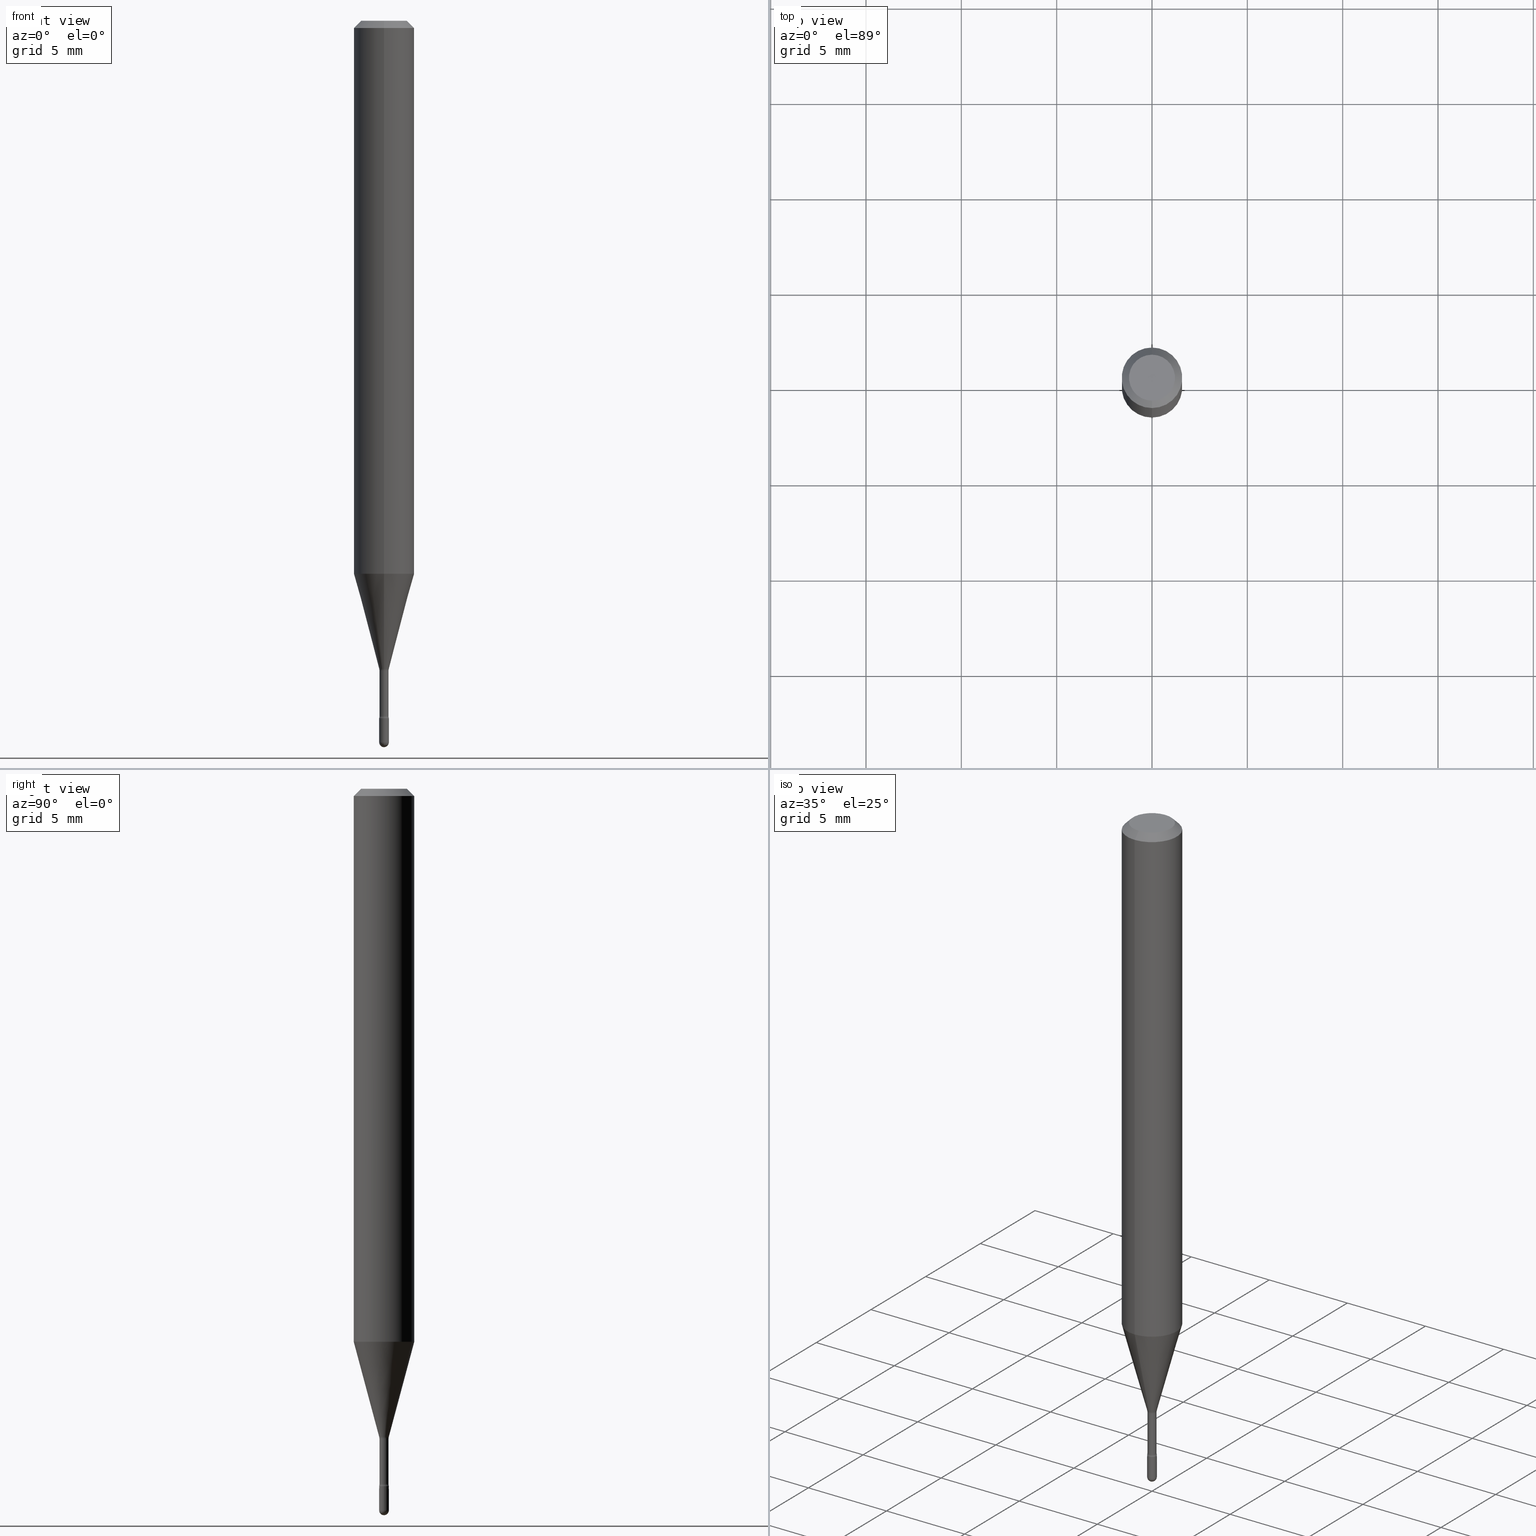
[diagram: canonical four-view strip — front | top / right | iso, engineering-drawing reading convention]
A machine part, canonical four-view strip (front | top / right | iso — engineering-drawing reading convention). The complete STEP part file that produces these views, byte-faithful:
ISO-10303-21;
HEADER;
FILE_DESCRIPTION (( 'STEP AP203' ),
    '1' );
FILE_NAME ('03699.STEP',
    '2024-04-09T20:12:26',
    ( '' ),
    ( '' ),
    'SwSTEP 2.0',
    'SolidWorks 2023',
    '' );
FILE_SCHEMA (( 'CONFIG_CONTROL_DESIGN' ));
ENDSEC;

DATA;
#1 = PERSON_AND_ORGANIZATION_ROLE ( 'design_owner' ) ;
#2 = CARTESIAN_POINT ( 'NONE',  ( 6.892264536876491067E-17, 0.009399999999995004366, -1.435800000000000187 ) ) ;
#3 = ADVANCED_FACE ( 'NONE', ( #163 ), #90, .T. ) ;
#4 = DIRECTION ( 'NONE',  ( -6.982962677686265133E-15, -1.000000000000000000, 0.000000000000000000 ) ) ;
#5 = ADVANCED_FACE ( 'NONE', ( #80 ), #40, .T. ) ;
#6 = ADVANCED_FACE ( 'NONE', ( #558 ), #508, .T. ) ;
#7 = LINE ( 'NONE', #394, #81 ) ;
#8 = CALENDAR_DATE ( 2024, 9, 4 ) ;
#9 = CARTESIAN_POINT ( 'NONE',  ( 3.511234028007964327E-29, -5.013026064771194887E-15, -1.435800000000000187 ) ) ;
#10 = DIRECTION ( 'NONE',  ( 1.000000000000000000, -6.982962677686265922E-15, 4.876176775795935793E-29 ) ) ;
#11 = DIRECTION ( 'NONE',  ( 2.445489642016968715E-29, -3.491451500746059769E-15, -1.000000000000000000 ) ) ;
#12 = DIRECTION ( 'NONE',  ( -2.445489642016968435E-29, 3.491451500746060163E-15, 1.000000000000000000 ) ) ;
#13 = EDGE_CURVE ( 'NONE', #248, #423, #432, .T. ) ;
#14 = CARTESIAN_POINT ( 'NONE',  ( 3.521475080906597305E-29, -5.027733127934130649E-15, -1.440000000000000169 ) ) ;
#15 = CARTESIAN_POINT ( 'NONE',  ( 2.572559502513361655E-16, 0.009911112605659305394, -1.338092501787273347 ) ) ;
#16 = DIRECTION ( 'NONE',  ( -6.982962677686265922E-15, -1.000000000000000000, 3.491451500746059769E-15 ) ) ;
#17 = VERTEX_POINT ( 'NONE', #156 ) ;
#18 = CYLINDRICAL_SURFACE ( 'NONE', #149, 0.01000000000000000021 ) ;
#19 = ORIENTED_EDGE ( 'NONE', *, *, #283, .F. ) ;
#20 = FACE_OUTER_BOUND ( 'NONE', #332, .T. ) ;
#21 = EDGE_LOOP ( 'NONE', ( #150, #552, #381, #112 ) ) ;
#22 = DIRECTION ( 'NONE',  ( -6.982962677686265922E-15, -1.000000000000000000, 0.000000000000000000 ) ) ;
#23 = CARTESIAN_POINT ( 'NONE',  ( 3.521505084504435331E-29, -5.027690161074327803E-15, -1.440000000000000169 ) ) ;
#24 = CIRCLE ( 'NONE', #525, 0.01000000000000000021 ) ;
#25 = APPROVAL ( #37, 'UNSPECIFIED' ) ;
#26 = EDGE_CURVE ( 'NONE', #427, #414, #555, .T. ) ;
#27 = ORIENTED_EDGE ( 'NONE', *, *, #117, .F. ) ;
#28 = VERTEX_POINT ( 'NONE', #290 ) ;
#29 = CARTESIAN_POINT ( 'NONE',  ( 3.668234463025472883E-31, -5.237177251119118989E-17, -0.01500000000000008271 ) ) ;
#30 = AXIS2_PLACEMENT_3D ( 'NONE', #14, #400, #10 ) ;
#31 = ORIENTED_EDGE ( 'NONE', *, *, #386, .F. ) ;
#32 = CIRCLE ( 'NONE', #565, 0.009911112605663977004 ) ;
#33 = EDGE_LOOP ( 'NONE', ( #98, #232 ) ) ;
#34 = DIRECTION ( 'NONE',  ( -2.445468806185136597E-29, 3.491481338843145583E-15, 1.000000000000000000 ) ) ;
#35 = EDGE_CURVE ( 'NONE', #141, #371, #480, .T. ) ;
#36 = ORIENTED_EDGE ( 'NONE', *, *, #117, .T. ) ;
#37 = APPROVAL_STATUS ( 'not_yet_approved' ) ;
#38 = PERSON ( 'UNSPECIFIED', 'UNSPECIFIED', 'UNSPECIFIED', ('UNSPECIFIED'), ('UNSPECIFIED'), ('UNSPECIFIED') ) ;
#39 = ORIENTED_EDGE ( 'NONE', *, *, #144, .F. ) ;
#40 = CONICAL_SURFACE ( 'NONE', #184, 0.009911112605663977004, 0.2617993877991500740 ) ;
#41 = APPROVAL ( #553, 'UNSPECIFIED' ) ;
#42 = AXIS2_PLACEMENT_3D ( 'NONE', #9, #441, #396 ) ;
#43 = EDGE_CURVE ( 'NONE', #375, #423, #260, .T. ) ;
#44 = DATE_AND_TIME ( #347, #288 ) ;
#45 = CARTESIAN_POINT ( 'NONE',  ( 1.733724275254996100E-16, 0.02439999999999499861, -1.435800000000000187 ) ) ;
#46 = FACE_OUTER_BOUND ( 'NONE', #294, .T. ) ;
#47 = AXIS2_PLACEMENT_3D ( 'NONE', #523, #540, #187 ) ;
#48 = DATE_AND_TIME ( #434, #387 ) ;
#49 = FACE_OUTER_BOUND ( 'NONE', #500, .T. ) ;
#50 = CC_DESIGN_DATE_AND_TIME_ASSIGNMENT ( #159, #337, ( #542 ) ) ;
#51 = AXIS2_PLACEMENT_3D ( 'NONE', #29, #468, #334 ) ;
#52 = VECTOR ( 'NONE', #349, 39.37007874015748854 ) ;
#53 = DIRECTION ( 'NONE',  ( -1.000000000000000000, 6.982962677686265922E-15, -4.883557194083112340E-29 ) ) ;
#54 = CARTESIAN_POINT ( 'NONE',  ( -6.563984917021807676E-17, -0.009400000000004684123, -1.341974787463811269 ) ) ;
#55 = AXIS2_PLACEMENT_3D ( 'NONE', #319, #146, #447 ) ;
#56 = DIRECTION ( 'NONE',  ( -2.445468806185136597E-29, 3.491481338843145583E-15, 1.000000000000000000 ) ) ;
#57 = DIRECTION ( 'NONE',  ( -2.445489642016968435E-29, 3.491451500746060163E-15, 1.000000000000000000 ) ) ;
#58 = CARTESIAN_POINT ( 'NONE',  ( 6.982962677689890787E-17, 0.009999999999994771752, -1.490000000000000213 ) ) ;
#59 = CIRCLE ( 'NONE', #200, 0.009999999999999946432 ) ;
#60 = FACE_OUTER_BOUND ( 'NONE', #374, .T. ) ;
#61 = DIRECTION ( 'NONE',  ( -2.445468806185136597E-29, 3.491481338843145583E-15, 1.000000000000000000 ) ) ;
#62 = ADVANCED_FACE ( 'NONE', ( #554 ), #123, .T. ) ;
#63 = CARTESIAN_POINT ( 'NONE',  ( -4.364351673553916201E-16, -0.06250000000000000000, 6.962891176878747988E-16 ) ) ;
#64 = EDGE_CURVE ( 'NONE', #414, #287, #314, .T. ) ;
#65 = DIRECTION ( 'NONE',  ( 6.982962677686265922E-15, 1.000000000000000000, -3.483106191921935554E-15 ) ) ;
#66 = CARTESIAN_POINT ( 'NONE',  ( 3.272291353181348697E-29, -4.671885073502225665E-15, -1.338092501787273347 ) ) ;
#67 = CARTESIAN_POINT ( 'NONE',  ( 2.023704369115274209E-45, -2.888979329757598670E-31, -8.274844938115695754E-17 ) ) ;
#68 = ORIENTED_EDGE ( 'NONE', *, *, #490, .F. ) ;
#69 = APPROVAL_PERSON_ORGANIZATION ( #521, #206, #129 ) ;
#70 = CC_DESIGN_PERSON_AND_ORGANIZATION_ASSIGNMENT ( #444, #399, ( #94 ) ) ;
#71 = FACE_OUTER_BOUND ( 'NONE', #33, .T. ) ;
#72 = ORIENTED_EDGE ( 'NONE', *, *, #43, .T. ) ;
#73 = DIMENSIONAL_EXPONENTS ( 1.000000000000000000, 0.000000000000000000, 0.000000000000000000, 0.000000000000000000, 0.000000000000000000, 0.000000000000000000, 0.000000000000000000 ) ;
#74 = EDGE_LOOP ( 'NONE', ( #456, #148 ) ) ;
#75 = CARTESIAN_POINT ( 'NONE',  ( 3.272291353181348697E-29, -4.671885073502225665E-15, -1.338092501787273347 ) ) ;
#76 = VERTEX_POINT ( 'NONE', #2 ) ;
#77 = CARTESIAN_POINT ( 'NONE',  ( -1.169113584055446105E-44, 1.669184350826100908E-30, 4.780733988912460139E-16 ) ) ;
#78 = TOROIDAL_SURFACE ( 'NONE', #359, 0.02440000000000000849, 0.01499999999999999077 ) ;
#79 = ORIENTED_EDGE ( 'NONE', *, *, #548, .T. ) ;
#80 = FACE_OUTER_BOUND ( 'NONE', #471, .T. ) ;
#81 = VECTOR ( 'NONE', #269, 39.37007874015748143 ) ;
#82 = AXIS2_PLACEMENT_3D ( 'NONE', #280, #275, #455 ) ;
#83 = ORIENTED_EDGE ( 'NONE', *, *, #35, .T. ) ;
#84 = DIRECTION ( 'NONE',  ( -6.982962677686265922E-15, -1.000000000000000000, 0.000000000000000000 ) ) ;
#85 = ORIENTED_EDGE ( 'NONE', *, *, #43, .F. ) ;
#86 = DATE_AND_TIME ( #472, #267 ) ;
#87 = TOROIDAL_SURFACE ( 'NONE', #402, 0.02440000000000000155, 0.01500000000000002720 ) ;
#88 = COORDINATED_UNIVERSAL_TIME_OFFSET ( 5, 0, .BEHIND. ) ;
#89 = CYLINDRICAL_SURFACE ( 'NONE', #95, 0.06250000000000000000 ) ;
#90 = CONICAL_SURFACE ( 'NONE', #128, 0.009911112605663977004, 0.2617993877991500740 ) ;
#91 = DIRECTION ( 'NONE',  ( -1.000000000000000000, 6.982962677686265922E-15, -4.883557194083112340E-29 ) ) ;
#92 = DIRECTION ( 'NONE',  ( -1.000000000000000000, 6.982962677686265133E-15, -4.883557194083112340E-29 ) ) ;
#93 = CARTESIAN_POINT ( 'NONE',  ( 6.679101716144946940E-17, 0.009400000000000009043, 4.452537547842330347E-16 ) ) ;
#94 = PRODUCT_DEFINITION_FORMATION_WITH_SPECIFIED_SOURCE ( 'ANY', '', #469, .NOT_KNOWN. ) ;
#95 = AXIS2_PLACEMENT_3D ( 'NONE', #266, #227, #477 ) ;
#96 = CARTESIAN_POINT ( 'NONE',  ( 2.023704369115274209E-45, -2.888979329757598670E-31, -8.274844938115695754E-17 ) ) ;
#97 = CARTESIAN_POINT ( 'NONE',  ( 3.316907271900976096E-16, 0.04749999999999999362, 3.181852846960672985E-17 ) ) ;
#98 = ORIENTED_EDGE ( 'NONE', *, *, #425, .F. ) ;
#99 = CARTESIAN_POINT ( 'NONE',  ( 3.668234463025472883E-31, -5.237177251119118989E-17, -0.01500000000000008271 ) ) ;
#100 = EDGE_CURVE ( 'NONE', #566, #539, #223, .T. ) ;
#101 = EDGE_LOOP ( 'NONE', ( #246, #198, #189, #68, #205 ) ) ;
#102 = AXIS2_PLACEMENT_3D ( 'NONE', #138, #214, #209 ) ;
#103 = CARTESIAN_POINT ( 'NONE',  ( -4.287811248607203282E-16, -0.06250000000000005551, -0.01499999999999986587 ) ) ;
#104 = CARTESIAN_POINT ( 'NONE',  ( 0.000000000000000000, 0.000000000000000000, 0.000000000000000000 ) ) ;
#105 = ORIENTED_EDGE ( 'NONE', *, *, #13, .T. ) ;
#106 = VECTOR ( 'NONE', #406, 39.37007874015748143 ) ;
#107 = PLANE ( 'NONE',  #82 ) ;
#108 = ORIENTED_EDGE ( 'NONE', *, *, #26, .F. ) ;
#109 = CC_DESIGN_PERSON_AND_ORGANIZATION_ASSIGNMENT ( #528, #1, ( #469 ) ) ;
#110 = FACE_OUTER_BOUND ( 'NONE', #119, .T. ) ;
#111 = APPLICATION_CONTEXT ( 'configuration controlled 3d designs of mechanical parts and assemblies' ) ;
#112 = ORIENTED_EDGE ( 'NONE', *, *, #122, .F. ) ;
#113 = AXIS2_PLACEMENT_3D ( 'NONE', #23, #543, #492 ) ;
#114 = TOROIDAL_SURFACE ( 'NONE', #547, 0.02440000000000000849, 0.01499999999999999077 ) ;
#115 = ORIENTED_EDGE ( 'NONE', *, *, #199, .F. ) ;
#116 = ORIENTED_EDGE ( 'NONE', *, *, #548, .F. ) ;
#117 = EDGE_CURVE ( 'NONE', #17, #506, #292, .T. ) ;
#118 = DIRECTION ( 'NONE',  ( -2.445489642016968435E-29, 3.491451500746060163E-15, 1.000000000000000000 ) ) ;
#119 = EDGE_LOOP ( 'NONE', ( #557, #341, #108, #19 ) ) ;
#120 = AXIS2_PLACEMENT_3D ( 'NONE', #127, #173, #526 ) ;
#121 = ORIENTED_EDGE ( 'NONE', *, *, #367, .F. ) ;
#122 = EDGE_CURVE ( 'NONE', #514, #420, #174, .T. ) ;
#123 = CYLINDRICAL_SURFACE ( 'NONE', #537, 0.06250000000000000000 ) ;
#124 = DIRECTION ( 'NONE',  ( -2.445489642016968435E-29, 3.491451500746060163E-15, 1.000000000000000000 ) ) ;
#125 = ADVANCED_FACE ( 'NONE', ( #357 ), #488, .T. ) ;
#126 = APPROVAL_STATUS ( 'not_yet_approved' ) ;
#127 = CARTESIAN_POINT ( 'NONE',  ( 2.792328796693690568E-29, -3.986637440734242640E-15, -1.141828102118093380 ) ) ;
#128 = AXIS2_PLACEMENT_3D ( 'NONE', #382, #293, #84 ) ;
#129 = APPROVAL_ROLE ( '' ) ;
#130 = CARTESIAN_POINT ( 'NONE',  ( -4.364351673553637142E-16, -0.06250000000000398293, -1.141828102118092936 ) ) ;
#131 = APPROVAL_DATE_TIME ( #48, #25 ) ;
#132 = DIRECTION ( 'NONE',  ( 1.000000000000000000, -7.105427357601001070E-15, 4.926315143130781498E-29 ) ) ;
#133 = CYLINDRICAL_SURFACE ( 'NONE', #451, 0.009400000000000009043 ) ;
#134 = DIRECTION ( 'NONE',  ( 1.000000000000000000, -6.982962677686265922E-15, 4.876176775795935793E-29 ) ) ;
#135 = AXIS2_PLACEMENT_3D ( 'NONE', #96, #436, #529 ) ;
#136 = EDGE_LOOP ( 'NONE', ( #282, #380, #467, #27 ) ) ;
#137 = LINE ( 'NONE', #409, #106 ) ;
#138 = CARTESIAN_POINT ( 'NONE',  ( 3.521475080906597305E-29, -5.027733127934130649E-15, -1.440000000000000169 ) ) ;
#139 = EDGE_CURVE ( 'NONE', #375, #377, #502, .T. ) ;
#140 = CARTESIAN_POINT ( 'NONE',  ( -6.982962677682741735E-17, -0.01000000000000502397, -1.440000000000000169 ) ) ;
#141 = VERTEX_POINT ( 'NONE', #265 ) ;
#142 = DIRECTION ( 'NONE',  ( -2.445489642016968435E-29, 3.491451500746060163E-15, 1.000000000000000000 ) ) ;
#143 = DIRECTION ( 'NONE',  ( -2.445489642016968435E-29, 3.491451500746060163E-15, 1.000000000000000000 ) ) ;
#144 = EDGE_CURVE ( 'NONE', #76, #494, #164, .T. ) ;
#145 = AXIS2_PLACEMENT_3D ( 'NONE', #276, #497, #190 ) ;
#146 = DIRECTION ( 'NONE',  ( -2.445489642016968435E-29, 3.491451500746060163E-15, 1.000000000000000000 ) ) ;
#147 = EDGE_LOOP ( 'NONE', ( #465, #249, #36, #192 ) ) ;
#148 = ORIENTED_EDGE ( 'NONE', *, *, #100, .T. ) ;
#149 = AXIS2_PLACEMENT_3D ( 'NONE', #104, #235, #457 ) ;
#150 = ORIENTED_EDGE ( 'NONE', *, *, #306, .F. ) ;
#151 = AXIS2_PLACEMENT_3D ( 'NONE', #258, #118, #160 ) ;
#152 = DIRECTION ( 'NONE',  ( -2.445489642016968435E-29, 3.491451500746060163E-15, 1.000000000000000000 ) ) ;
#153 = EDGE_CURVE ( 'NONE', #76, #377, #215, .T. ) ;
#154 = EDGE_LOOP ( 'NONE', ( #315, #342, #83, #161 ) ) ;
#155 = COORDINATED_UNIVERSAL_TIME_OFFSET ( 5, 0, .BEHIND. ) ;
#156 = CARTESIAN_POINT ( 'NONE',  ( -6.920892941966470292E-17, -0.009911112605668648615, -1.338092501787273347 ) ) ;
#157 = EDGE_CURVE ( 'NONE', #17, #248, #520, .T. ) ;
#158 = ORIENTED_EDGE ( 'NONE', *, *, #306, .T. ) ;
#159 = DATE_AND_TIME ( #560, #348 ) ;
#160 = DIRECTION ( 'NONE',  ( -6.982962677686265922E-15, -1.000000000000000000, 4.370956789862821150E-15 ) ) ;
#161 = ORIENTED_EDGE ( 'NONE', *, *, #551, .F. ) ;
#162 = APPROVAL_ROLE ( '' ) ;
#163 = FACE_OUTER_BOUND ( 'NONE', #411, .T. ) ;
#164 = CIRCLE ( 'NONE', #461, 0.01499999999999999424 ) ;
#165 = ORIENTED_EDGE ( 'NONE', *, *, #301, .F. ) ;
#166 = CIRCLE ( 'NONE', #295, 0.009399999999999998634 ) ;
#167 = APPLICATION_PROTOCOL_DEFINITION ( 'international standard', 'config_control_design', 1994, #111 ) ;
#168 = CARTESIAN_POINT ( 'NONE',  ( -1.703842893355120750E-16, -0.02440000000000468877, -1.341974787463811269 ) ) ;
#169 = PERSON_AND_ORGANIZATION_ROLE ( 'creator' ) ;
#170 = DIRECTION ( 'NONE',  ( 6.982962677686265133E-15, 1.000000000000000000, 0.000000000000000000 ) ) ;
#171 = CIRCLE ( 'NONE', #102, 0.01000000000000000021 ) ;
#172 = COORDINATED_UNIVERSAL_TIME_OFFSET ( 5, 0, .BEHIND. ) ;
#173 = DIRECTION ( 'NONE',  ( -2.445489642016968435E-29, 3.491451500746060163E-15, 1.000000000000000000 ) ) ;
#174 = CIRCLE ( 'NONE', #373, 0.01499999999999999424 ) ;
#175 = CARTESIAN_POINT ( 'NONE',  ( 4.364351673553919652E-16, 0.06249999999999995143, -0.01500000000000030129 ) ) ;
#176 = DIRECTION ( 'NONE',  ( -2.445489642016968435E-29, 3.491451500746059769E-15, 1.000000000000000000 ) ) ;
#177 = FACE_OUTER_BOUND ( 'NONE', #136, .T. ) ;
#178 = FACE_OUTER_BOUND ( 'NONE', #74, .T. ) ;
#179 = MANIFOLD_SOLID_BREP ( 'Body-Move/Copy2[2]', #460 ) ;
#180 = EDGE_CURVE ( 'NONE', #287, #321, #24, .T. ) ;
#181 = LINE ( 'NONE', #63, #271 ) ;
#182 = CARTESIAN_POINT ( 'NONE',  ( 0.01000000000000000021, -5.097562754710993158E-15, -1.440000000000000169 ) ) ;
#183 = SPHERICAL_SURFACE ( 'NONE', #333, 0.009999999999999946432 ) ;
#184 = AXIS2_PLACEMENT_3D ( 'NONE', #75, #419, #344 ) ;
#185 = MANIFOLD_SOLID_BREP ( 'Body-Move/Copy2[1]', #284 ) ;
#186 = CIRCLE ( 'NONE', #55, 0.009400000000000017716 ) ;
#187 = DIRECTION ( 'NONE',  ( -7.105427357601000281E-15, -1.000000000000000000, 0.000000000000000000 ) ) ;
#188 = CARTESIAN_POINT ( 'NONE',  ( 4.440892098500903249E-16, 0.06249999999999600320, -1.141828102118093602 ) ) ;
#189 = ORIENTED_EDGE ( 'NONE', *, *, #478, .F. ) ;
#190 = DIRECTION ( 'NONE',  ( -6.982962677686265922E-15, -1.000000000000000000, 3.491451500746060163E-15 ) ) ;
#191 = CARTESIAN_POINT ( 'NONE',  ( 3.511204111920620127E-29, -5.013068906310989230E-15, -1.435800000000000187 ) ) ;
#192 = ORIENTED_EDGE ( 'NONE', *, *, #473, .T. ) ;
#193 = EDGE_LOOP ( 'NONE', ( #510, #550, #562, #545 ) ) ;
#194 = DIRECTION ( 'NONE',  ( -6.982962677686265922E-15, -1.000000000000000000, 0.000000000000000000 ) ) ;
#195 = ORIENTED_EDGE ( 'NONE', *, *, #490, .T. ) ;
#196 = AXIS2_PLACEMENT_3D ( 'NONE', #541, #143, #534 ) ;
#197 = ORIENTED_EDGE ( 'NONE', *, *, #386, .T. ) ;
#198 = ORIENTED_EDGE ( 'NONE', *, *, #301, .T. ) ;
#199 = EDGE_CURVE ( 'NONE', #423, #248, #395, .T. ) ;
#200 = AXIS2_PLACEMENT_3D ( 'NONE', #405, #446, #397 ) ;
#201 = DIRECTION ( 'NONE',  ( -2.445468806185136597E-29, 3.491481338843145583E-15, 1.000000000000000000 ) ) ;
#202 = AXIS2_PLACEMENT_3D ( 'NONE', #370, #401, #134 ) ;
#203 = ORIENTED_EDGE ( 'NONE', *, *, #263, .F. ) ;
#204 = AXIS2_PLACEMENT_3D ( 'NONE', #338, #201, #466 ) ;
#205 = ORIENTED_EDGE ( 'NONE', *, *, #26, .T. ) ;
#206 = APPROVAL ( #126, 'UNSPECIFIED' ) ;
#207 = ORIENTED_EDGE ( 'NONE', *, *, #153, .T. ) ;
#208 = SHAPE_DEFINITION_REPRESENTATION ( #216, #222 ) ;
#209 = DIRECTION ( 'NONE',  ( 1.000000000000000000, -6.982962677686235945E-15, 0.000000000000000000 ) ) ;
#210 = AXIS2_PLACEMENT_3D ( 'NONE', #372, #61, #546 ) ;
#211 = ORIENTED_EDGE ( 'NONE', *, *, #464, .F. ) ;
#212 = APPLICATION_PROTOCOL_DEFINITION ( 'international standard', 'config_control_design', 1994, #496 ) ;
#213 = AXIS2_PLACEMENT_3D ( 'NONE', #391, #221, #219 ) ;
#214 = DIRECTION ( 'NONE',  ( -2.445468806185136597E-29, 3.491481338843145583E-15, 1.000000000000000000 ) ) ;
#215 = LINE ( 'NONE', #93, #247 ) ;
#216 = PRODUCT_DEFINITION_SHAPE ( 'NONE', 'NONE',  #507 ) ;
#217 = CC_DESIGN_PERSON_AND_ORGANIZATION_ASSIGNMENT ( #486, #169, ( #507 ) ) ;
#218 = CARTESIAN_POINT ( 'NONE',  ( 0.000000000000000000, 0.000000000000000000, 0.000000000000000000 ) ) ;
#219 = DIRECTION ( 'NONE',  ( 1.000000000000000000, -6.982962677686235945E-15, 0.000000000000000000 ) ) ;
#220 = DIRECTION ( 'NONE',  ( 1.000000000000000000, 0.000000000000000000, 0.000000000000000000 ) ) ;
#221 = DIRECTION ( 'NONE',  ( -2.445468806185136597E-29, 3.491481338843145583E-15, 1.000000000000000000 ) ) ;
#222 = ADVANCED_BREP_SHAPE_REPRESENTATION ( '03699', ( #185, #179, #379 ), #564 ) ;
#223 = CIRCLE ( 'NONE', #135, 0.04749999999999999362 ) ;
#224 = DIRECTION ( 'NONE',  ( 1.000000000000000000, -7.105427357601001070E-15, 4.926315143130781498E-29 ) ) ;
#225 = CARTESIAN_POINT ( 'NONE',  ( -6.563984917021591972E-17, -0.009400000000005031067, -1.435800000000000187 ) ) ;
#226 = ADVANCED_FACE ( 'NONE', ( #49 ), #487, .T. ) ;
#227 = DIRECTION ( 'NONE',  ( -2.445489642016968435E-29, 3.491451500746060163E-15, 1.000000000000000000 ) ) ;
#228 = DIRECTION ( 'NONE',  ( -6.982962677686265922E-15, -1.000000000000000000, 3.491451500746060163E-15 ) ) ;
#229 = DIRECTION ( 'NONE',  ( 2.445489642016968435E-29, -3.491451500746060163E-15, -1.000000000000000000 ) ) ;
#230 = LOCAL_TIME ( 16, 12, 26.00000000000000000, #393 ) ;
#231 = SECURITY_CLASSIFICATION_LEVEL ( 'unclassified' ) ;
#232 = ORIENTED_EDGE ( 'NONE', *, *, #448, .F. ) ;
#233 = PLANE ( 'NONE',  #30 ) ;
#234 = DIRECTION ( 'NONE',  ( -4.851104656540964275E-15, -0.7071067811865500152, -0.7071067811865450192 ) ) ;
#235 = DIRECTION ( 'NONE',  ( -2.445468806185136597E-29, 3.491481338843145583E-15, 1.000000000000000000 ) ) ;
#236 = ORIENTED_EDGE ( 'NONE', *, *, #35, .F. ) ;
#237 = DIRECTION ( 'NONE',  ( -2.445489642016968435E-29, 3.491451500746059769E-15, 1.000000000000000000 ) ) ;
#238 = CARTESIAN_POINT ( 'NONE',  ( 0.01000000000000000021, -5.184849788182071492E-15, -1.490000000000000213 ) ) ;
#239 = DIRECTION ( 'NONE',  ( -2.445489642016968435E-29, 3.491451500746060163E-15, 1.000000000000000000 ) ) ;
#240 = DIRECTION ( 'NONE',  ( -6.982962677686265922E-15, -1.000000000000000000, 0.000000000000000000 ) ) ;
#241 = CC_DESIGN_APPROVAL ( #41, ( #542 ) ) ;
#242 = ORIENTED_EDGE ( 'NONE', *, *, #340, .F. ) ;
#243 = CIRCLE ( 'NONE', #499, 0.009399999999999998634 ) ;
#244 = CARTESIAN_POINT ( 'NONE',  ( 3.281785442590673140E-29, -4.685439885653898526E-15, -1.341974787463811269 ) ) ;
#245 = CIRCLE ( 'NONE', #458, 0.04749999999999999362 ) ;
#246 = ORIENTED_EDGE ( 'NONE', *, *, #64, .T. ) ;
#247 = VECTOR ( 'NONE', #345, 39.37007874015748143 ) ;
#248 = VERTEX_POINT ( 'NONE', #130 ) ;
#249 = ORIENTED_EDGE ( 'NONE', *, *, #376, .F. ) ;
#250 = VECTOR ( 'NONE', #518, 39.37007874015748143 ) ;
#251 = CARTESIAN_POINT ( 'NONE',  ( 3.668234463025472883E-31, -5.237177251119118989E-17, -0.01500000000000008271 ) ) ;
#252 = ORIENTED_EDGE ( 'NONE', *, *, #331, .T. ) ;
#253 = CC_DESIGN_DATE_AND_TIME_ASSIGNMENT ( #44, #268, ( #507 ) ) ;
#254 = AXIS2_PLACEMENT_3D ( 'NONE', #439, #132, #311 ) ;
#255 = DIRECTION ( 'NONE',  ( -6.982962677686265922E-15, -1.000000000000000000, 3.483106191921935554E-15 ) ) ;
#256 = ORIENTED_EDGE ( 'NONE', *, *, #157, .T. ) ;
#257 = PERSON_AND_ORGANIZATION ( #38, #324 ) ;
#258 = CARTESIAN_POINT ( 'NONE',  ( 2.792328796693690568E-29, -3.986637440734242640E-15, -1.141828102118093380 ) ) ;
#259 = ORIENTED_EDGE ( 'NONE', *, *, #13, .F. ) ;
#260 = LINE ( 'NONE', #378, #388 ) ;
#261 = DIRECTION ( 'NONE',  ( -6.982962677686265133E-15, -1.000000000000000000, 0.000000000000000000 ) ) ;
#262 = ADVANCED_FACE ( 'NONE', ( #46 ), #89, .T. ) ;
#263 = EDGE_CURVE ( 'NONE', #514, #506, #303, .T. ) ;
#264 =( NAMED_UNIT ( * ) SI_UNIT ( $, .STERADIAN. ) SOLID_ANGLE_UNIT ( ) );
#265 = CARTESIAN_POINT ( 'NONE',  ( -4.364351673553912750E-16, -0.06250000000000005551, -0.01499999999999986587 ) ) ;
#266 = CARTESIAN_POINT ( 'NONE',  ( -1.169113584055446105E-44, 1.669184350826100908E-30, 4.780733988912460139E-16 ) ) ;
#267 = LOCAL_TIME ( 16, 12, 26.00000000000000000, #298 ) ;
#268 = DATE_TIME_ROLE ( 'creation_date' ) ;
#269 = DIRECTION ( 'NONE',  ( -2.445468806185136877E-29, 3.491481338843145188E-15, 1.000000000000000000 ) ) ;
#270 = CC_DESIGN_PERSON_AND_ORGANIZATION_ASSIGNMENT ( #257, #424, ( #542 ) ) ;
#271 = VECTOR ( 'NONE', #237, 39.37007874015748143 ) ;
#272 = CARTESIAN_POINT ( 'NONE',  ( 7.105427357604519833E-17, 0.009999999999994971245, -1.440000000000000169 ) ) ;
#273 = FACE_OUTER_BOUND ( 'NONE', #101, .T. ) ;
#274 = DIRECTION ( 'NONE',  ( -2.445489642016968435E-29, 3.491451500746060163E-15, 1.000000000000000000 ) ) ;
#275 = DIRECTION ( 'NONE',  ( -2.445489642016968715E-29, 3.491451500746059769E-15, 1.000000000000000000 ) ) ;
#276 = CARTESIAN_POINT ( 'NONE',  ( 3.281757481429678345E-29, -4.685479927627892670E-15, -1.341974787463811269 ) ) ;
#277 = CARTESIAN_POINT ( 'NONE',  ( 3.511204111920620127E-29, -5.013068906310989230E-15, -1.435800000000000187 ) ) ;
#278 = AXIS2_PLACEMENT_3D ( 'NONE', #389, #124, #482 ) ;
#279 = ORIENTED_EDGE ( 'NONE', *, *, #404, .T. ) ;
#280 = CARTESIAN_POINT ( 'NONE',  ( 6.982962677689787249E-17, 0.009999999999994971245, -1.440000000000000169 ) ) ;
#281 = APPROVAL_PERSON_ORGANIZATION ( #343, #41, #162 ) ;
#282 = ORIENTED_EDGE ( 'NONE', *, *, #330, .F. ) ;
#283 = EDGE_CURVE ( 'NONE', #321, #427, #325, .T. ) ;
#284 = CLOSED_SHELL ( 'NONE', ( #429, #125, #530, #485, #440 ) ) ;
#285 = EDGE_LOOP ( 'NONE', ( #326, #79 ) ) ;
#286 = VECTOR ( 'NONE', #176, 39.37007874015748143 ) ;
#287 = VERTEX_POINT ( 'NONE', #300 ) ;
#288 = LOCAL_TIME ( 16, 12, 26.00000000000000000, #172 ) ;
#289 = EDGE_LOOP ( 'NONE', ( #121, #211, #462, #197 ) ) ;
#290 = CARTESIAN_POINT ( 'NONE',  ( -0.01000000000000000021, -5.043965887829198901E-15, -1.440000000000000169 ) ) ;
#291 = ORIENTED_EDGE ( 'NONE', *, *, #153, .F. ) ;
#292 = CIRCLE ( 'NONE', #422, 0.01500000000000002720 ) ;
#293 = DIRECTION ( 'NONE',  ( -2.445489642016968435E-29, 3.491451500746060163E-15, 1.000000000000000000 ) ) ;
#294 = EDGE_LOOP ( 'NONE', ( #242, #559, #252, #31 ) ) ;
#295 = AXIS2_PLACEMENT_3D ( 'NONE', #413, #410, #501 ) ;
#296 = LENGTH_MEASURE_WITH_UNIT ( LENGTH_MEASURE( 0.02539999999999999897 ), #481 );
#297 = CARTESIAN_POINT ( 'NONE',  ( 3.643748521215853910E-29, -5.202307194876288105E-15, -1.490000000000000213 ) ) ;
#298 = COORDINATED_UNIVERSAL_TIME_OFFSET ( 5, 0, .BEHIND. ) ;
#299 = APPROVAL_ROLE ( '' ) ;
#300 = CARTESIAN_POINT ( 'NONE',  ( -0.01000000000000000021, -5.043965887829198901E-15, -1.490000000000000213 ) ) ;
#301 = EDGE_CURVE ( 'NONE', #287, #28, #7, .T. ) ;
#302 = LINE ( 'NONE', #175, #250 ) ;
#303 = LINE ( 'NONE', #307, #286 ) ;
#304 = AXIS2_PLACEMENT_3D ( 'NONE', #251, #515, #255 ) ;
#305 = CC_DESIGN_APPROVAL ( #25, ( #507 ) ) ;
#306 = EDGE_CURVE ( 'NONE', #76, #514, #416, .T. ) ;
#307 = CARTESIAN_POINT ( 'NONE',  ( -6.563984917025096240E-17, -0.009400000000000009043, 5.108930429982590917E-16 ) ) ;
#308 = CARTESIAN_POINT ( 'NONE',  ( -3.773273898774340269E-16, -0.04749999999999999362, 8.309549690428089627E-17 ) ) ;
#309 = DIRECTION ( 'NONE',  ( 7.105427357600999492E-15, 1.000000000000000000, 0.000000000000000000 ) ) ;
#310 = CIRCLE ( 'NONE', #210, 0.01000000000000000021 ) ;
#311 = DIRECTION ( 'NONE',  ( 7.105427357601000281E-15, 1.000000000000000000, 0.000000000000000000 ) ) ;
#312 = DIRECTION ( 'NONE',  ( -6.982962677686265922E-15, -1.000000000000000000, 3.491451500746060163E-15 ) ) ;
#313 = DIRECTION ( 'NONE',  ( -6.982962677686266711E-15, -1.000000000000000000, 3.491451500746060558E-15 ) ) ;
#314 = CIRCLE ( 'NONE', #355, 0.01000000000000000021 ) ;
#315 = ORIENTED_EDGE ( 'NONE', *, *, #100, .F. ) ;
#316 = FACE_OUTER_BOUND ( 'NONE', #147, .T. ) ;
#317 = DIRECTION ( 'NONE',  ( 6.982962677686265133E-15, 1.000000000000000000, 0.000000000000000000 ) ) ;
#318 = EDGE_LOOP ( 'NONE', ( #105, #335, #236, #430 ) ) ;
#319 = CARTESIAN_POINT ( 'NONE',  ( 3.511234028007964327E-29, -5.013026064771194887E-15, -1.435800000000000187 ) ) ;
#320 = ADVANCED_FACE ( 'NONE', ( #177 ), #516, .F. ) ;
#321 = VERTEX_POINT ( 'NONE', #532 ) ;
#322 = LINE ( 'NONE', #103, #443 ) ;
#323 = DIRECTION ( 'NONE',  ( -6.982962677686265922E-15, -1.000000000000000000, 3.491451500746059769E-15 ) ) ;
#324 = ORGANIZATION ( 'UNSPECIFIED', 'UNSPECIFIED', '' ) ;
#325 = CIRCLE ( 'NONE', #213, 0.01000000000000000021 ) ;
#326 = ORIENTED_EDGE ( 'NONE', *, *, #478, .T. ) ;
#327 = CARTESIAN_POINT ( 'NONE',  ( 4.440892098500906207E-16, 0.06249999999999993755, -0.01500000000000030129 ) ) ;
#328 = FACE_OUTER_BOUND ( 'NONE', #418, .T. ) ;
#329 = ORIENTED_EDGE ( 'NONE', *, *, #157, .F. ) ;
#330 = EDGE_CURVE ( 'NONE', #375, #17, #32, .T. ) ;
#331 = EDGE_CURVE ( 'NONE', #248, #141, #181, .T. ) ;
#332 = EDGE_LOOP ( 'NONE', ( #165, #517, #459, #195, #116 ) ) ;
#333 = AXIS2_PLACEMENT_3D ( 'NONE', #363, #538, #317 ) ;
#334 = DIRECTION ( 'NONE',  ( 6.982962677686265922E-15, 1.000000000000000000, -3.483106191921935554E-15 ) ) ;
#335 = ORIENTED_EDGE ( 'NONE', *, *, #340, .T. ) ;
#336 = VERTEX_POINT ( 'NONE', #361 ) ;
#337 = DATE_TIME_ROLE ( 'classification_date' ) ;
#338 = CARTESIAN_POINT ( 'NONE',  ( 3.643748521215853910E-29, -5.202307194876288105E-15, -1.490000000000000213 ) ) ;
#339 = AXIS2_PLACEMENT_3D ( 'NONE', #99, #229, #65 ) ;
#340 = EDGE_CURVE ( 'NONE', #423, #371, #137, .T. ) ;
#341 = ORIENTED_EDGE ( 'NONE', *, *, #527, .T. ) ;
#342 = ORIENTED_EDGE ( 'NONE', *, *, #367, .T. ) ;
#343 = PERSON_AND_ORGANIZATION ( #38, #324 ) ;
#344 = DIRECTION ( 'NONE',  ( -6.982962677686265922E-15, -1.000000000000000000, 0.000000000000000000 ) ) ;
#345 = DIRECTION ( 'NONE',  ( -2.445489642016968435E-29, 3.491451500746059769E-15, 1.000000000000000000 ) ) ;
#346 = CIRCLE ( 'NONE', #561, 0.01000000000000000021 ) ;
#347 = CALENDAR_DATE ( 2024, 9, 4 ) ;
#348 = LOCAL_TIME ( 16, 12, 26.00000000000000000, #155 ) ;
#349 = DIRECTION ( 'NONE',  ( -1.807323732225328562E-15, -0.2588190451025179639, 0.9659258262890690894 ) ) ;
#350 = DIRECTION ( 'NONE',  ( -2.445468806185136877E-29, 3.491481338843145188E-15, 1.000000000000000000 ) ) ;
#351 = AXIS2_PLACEMENT_3D ( 'NONE', #97, #11, #536 ) ;
#352 = ORIENTED_EDGE ( 'NONE', *, *, #412, .F. ) ;
#353 = PERSON_AND_ORGANIZATION ( #38, #324 ) ;
#354 = CARTESIAN_POINT ( 'NONE',  ( -6.920892941966470292E-17, -0.009911112605668648615, -1.338092501787273347 ) ) ;
#355 = AXIS2_PLACEMENT_3D ( 'NONE', #297, #34, #476 ) ;
#356 = MECHANICAL_CONTEXT ( 'NONE', #496, 'mechanical' ) ;
#357 = FACE_OUTER_BOUND ( 'NONE', #193, .T. ) ;
#358 = FACE_OUTER_BOUND ( 'NONE', #154, .T. ) ;
#359 = AXIS2_PLACEMENT_3D ( 'NONE', #277, #407, #16 ) ;
#360 = PERSON_AND_ORGANIZATION ( #38, #324 ) ;
#361 = CARTESIAN_POINT ( 'NONE',  ( 3.668630792422295430E-29, -5.236609684865145574E-15, -1.500000000000000222 ) ) ;
#362 = CARTESIAN_POINT ( 'NONE',  ( 3.840629472727447874E-16, 0.04749999999999999362, -2.485923956665947867E-16 ) ) ;
#363 = CARTESIAN_POINT ( 'NONE',  ( 3.643748521215853910E-29, -5.202307194876288105E-15, -1.490000000000000213 ) ) ;
#364 = AXIS2_PLACEMENT_3D ( 'NONE', #66, #239, #22 ) ;
#365 = ORIENTED_EDGE ( 'NONE', *, *, #330, .T. ) ;
#366 = CARTESIAN_POINT ( 'NONE',  ( 3.272291353181348697E-29, -4.671885073502225665E-15, -1.338092501787273347 ) ) ;
#367 = EDGE_CURVE ( 'NONE', #566, #141, #322, .T. ) ;
#368 = CARTESIAN_POINT ( 'NONE',  ( 6.679101716148457371E-17, 0.009399999999995313146, -1.341974787463811269 ) ) ;
#369 = CYLINDRICAL_SURFACE ( 'NONE', #202, 0.01000000000000000021 ) ;
#370 = CARTESIAN_POINT ( 'NONE',  ( 0.000000000000000000, 0.000000000000000000, 0.000000000000000000 ) ) ;
#371 = VERTEX_POINT ( 'NONE', #327 ) ;
#372 = CARTESIAN_POINT ( 'NONE',  ( 3.521475080906597305E-29, -5.027733127934130649E-15, -1.440000000000000169 ) ) ;
#373 = AXIS2_PLACEMENT_3D ( 'NONE', #484, #91, #261 ) ;
#374 = EDGE_LOOP ( 'NONE', ( #279, #207, #408, #203 ) ) ;
#375 = VERTEX_POINT ( 'NONE', #15 ) ;
#376 = EDGE_CURVE ( 'NONE', #17, #375, #470, .T. ) ;
#377 = VERTEX_POINT ( 'NONE', #368 ) ;
#378 = CARTESIAN_POINT ( 'NONE',  ( 7.042269065258168553E-17, 0.009911112605659305394, -1.338092501787273347 ) ) ;
#379 = AXIS2_PLACEMENT_3D ( 'NONE', #218, #475, #220 ) ;
#380 = ORIENTED_EDGE ( 'NONE', *, *, #139, .T. ) ;
#381 = ORIENTED_EDGE ( 'NONE', *, *, #448, .T. ) ;
#382 = CARTESIAN_POINT ( 'NONE',  ( 3.272291353181348697E-29, -4.671885073502225665E-15, -1.338092501787273347 ) ) ;
#383 = ORIENTED_EDGE ( 'NONE', *, *, #263, .T. ) ;
#384 = ADVANCED_FACE ( 'NONE', ( #453 ), #114, .F. ) ;
#385 = ORIENTED_EDGE ( 'NONE', *, *, #376, .T. ) ;
#386 = EDGE_CURVE ( 'NONE', #371, #141, #433, .T. ) ;
#387 = LOCAL_TIME ( 16, 12, 26.00000000000000000, #88 ) ;
#388 = VECTOR ( 'NONE', #519, 39.37007874015748854 ) ;
#389 = CARTESIAN_POINT ( 'NONE',  ( -1.169113584055446105E-44, 1.669184350826100908E-30, 4.780733988912460139E-16 ) ) ;
#390 = CC_DESIGN_SECURITY_CLASSIFICATION ( #542, ( #94 ) ) ;
#391 = CARTESIAN_POINT ( 'NONE',  ( 3.643748521215853910E-29, -5.202307194876288105E-15, -1.490000000000000213 ) ) ;
#392 = CIRCLE ( 'NONE', #47, 0.009999999999999946432 ) ;
#393 = COORDINATED_UNIVERSAL_TIME_OFFSET ( 5, 0, .BEHIND. ) ;
#394 = CARTESIAN_POINT ( 'NONE',  ( -0.01000000000000000021, 7.105427357601002007E-17, -4.918935090254906272E-31 ) ) ;
#395 = CIRCLE ( 'NONE', #120, 0.06250000000000000000 ) ;
#396 = DIRECTION ( 'NONE',  ( -6.982962677686267499E-15, -1.000000000000000000, 0.000000000000000000 ) ) ;
#397 = DIRECTION ( 'NONE',  ( 6.982962677686265922E-15, 1.000000000000000000, 0.000000000000000000 ) ) ;
#398 = UNCERTAINTY_MEASURE_WITH_UNIT (LENGTH_MEASURE( 1.000000000000000082E-05 ), #438, 'distance_accuracy_value', 'NONE');
#399 = PERSON_AND_ORGANIZATION_ROLE ( 'design_supplier' ) ;
#400 = DIRECTION ( 'NONE',  ( -2.438088387897960049E-29, 3.491481338843145188E-15, 1.000000000000000000 ) ) ;
#401 = DIRECTION ( 'NONE',  ( -2.445468806185136597E-29, 3.491481338843145583E-15, 1.000000000000000000 ) ) ;
#402 = AXIS2_PLACEMENT_3D ( 'NONE', #449, #274, #312 ) ;
#403 = CC_DESIGN_PERSON_AND_ORGANIZATION_ASSIGNMENT ( #360, #535, ( #94 ) ) ;
#404 = EDGE_CURVE ( 'NONE', #514, #76, #186, .T. ) ;
#405 = CARTESIAN_POINT ( 'NONE',  ( 3.643748521215853910E-29, -5.202307194876288105E-15, -1.490000000000000213 ) ) ;
#406 = DIRECTION ( 'NONE',  ( -2.445489642016968435E-29, 3.491451500746059769E-15, 1.000000000000000000 ) ) ;
#407 = DIRECTION ( 'NONE',  ( -2.445489642016968435E-29, 3.491451500746060163E-15, 1.000000000000000000 ) ) ;
#408 = ORIENTED_EDGE ( 'NONE', *, *, #473, .F. ) ;
#409 = CARTESIAN_POINT ( 'NONE',  ( 4.440892098500625669E-16, 0.06250000000000000000, 2.598576800946173277E-16 ) ) ;
#410 = DIRECTION ( 'NONE',  ( -2.445489642016968435E-29, 3.491451500746060163E-15, 1.000000000000000000 ) ) ;
#411 = EDGE_LOOP ( 'NONE', ( #385, #72, #259, #329 ) ) ;
#412 = EDGE_CURVE ( 'NONE', #377, #506, #166, .T. ) ;
#413 = CARTESIAN_POINT ( 'NONE',  ( 3.281785442590673140E-29, -4.685439885653898526E-15, -1.341974787463811269 ) ) ;
#414 = VERTEX_POINT ( 'NONE', #58 ) ;
#415 = DIRECTION ( 'NONE',  ( -2.445489642016968435E-29, 3.491451500746060163E-15, 1.000000000000000000 ) ) ;
#416 = CIRCLE ( 'NONE', #42, 0.009400000000000017716 ) ;
#417 = DATE_AND_TIME ( #8, #230 ) ;
#418 = EDGE_LOOP ( 'NONE', ( #39, #474, #505, #511 ) ) ;
#419 = DIRECTION ( 'NONE',  ( -2.445489642016968435E-29, 3.491451500746060163E-15, 1.000000000000000000 ) ) ;
#420 = VERTEX_POINT ( 'NONE', #140 ) ;
#421 = ADVANCED_FACE ( 'NONE', ( #358 ), #437, .T. ) ;
#422 = AXIS2_PLACEMENT_3D ( 'NONE', #168, #53, #4 ) ;
#423 = VERTEX_POINT ( 'NONE', #188 ) ;
#424 = PERSON_AND_ORGANIZATION_ROLE ( 'classification_officer' ) ;
#425 = EDGE_CURVE ( 'NONE', #420, #494, #346, .T. ) ;
#426 = DIRECTION ( 'NONE',  ( -6.982962677686265922E-15, -1.000000000000000000, 3.491451500746058980E-15 ) ) ;
#427 = VERTEX_POINT ( 'NONE', #238 ) ;
#428 = APPROVAL_DATE_TIME ( #86, #41 ) ;
#429 = ADVANCED_FACE ( 'NONE', ( #273 ), #18, .T. ) ;
#430 = ORIENTED_EDGE ( 'NONE', *, *, #331, .F. ) ;
#431 = VECTOR ( 'NONE', #350, 39.37007874015748143 ) ;
#432 = CIRCLE ( 'NONE', #151, 0.06250000000000000000 ) ;
#433 = CIRCLE ( 'NONE', #196, 0.06250000000000000000 ) ;
#434 = CALENDAR_DATE ( 2024, 9, 4 ) ;
#435 = CARTESIAN_POINT ( 'NONE',  ( 3.643748521215853910E-29, -5.202307194876288105E-15, -1.490000000000000213 ) ) ;
#436 = DIRECTION ( 'NONE',  ( -2.445489642016968435E-29, 3.491451500746060163E-15, 1.000000000000000000 ) ) ;
#437 = CONICAL_SURFACE ( 'NONE', #339, 0.06250000000000000000, 0.7853981633974483900 ) ;
#438 =( CONVERSION_BASED_UNIT ( 'INCH', #296 ) LENGTH_UNIT ( ) NAMED_UNIT ( #73 ) );
#439 = CARTESIAN_POINT ( 'NONE',  ( 1.733724275254972434E-16, 0.02439999999999531433, -1.341974787463811269 ) ) ;
#440 = ADVANCED_FACE ( 'NONE', ( #20 ), #369, .T. ) ;
#441 = DIRECTION ( 'NONE',  ( -2.445489642016968435E-29, 3.491451500746060163E-15, 1.000000000000000000 ) ) ;
#442 = FACE_OUTER_BOUND ( 'NONE', #285, .T. ) ;
#443 = VECTOR ( 'NONE', #234, 39.37007874015748143 ) ;
#444 = PERSON_AND_ORGANIZATION ( #38, #324 ) ;
#445 = CARTESIAN_POINT ( 'NONE',  ( 3.643748521215853910E-29, -5.202307194876288105E-15, -1.490000000000000213 ) ) ;
#446 = DIRECTION ( 'NONE',  ( 1.000000000000000000, -6.982962677686265922E-15, 4.883557194083112340E-29 ) ) ;
#447 = DIRECTION ( 'NONE',  ( -6.982962677686267499E-15, -1.000000000000000000, 0.000000000000000000 ) ) ;
#448 = EDGE_CURVE ( 'NONE', #494, #420, #479, .T. ) ;
#449 = CARTESIAN_POINT ( 'NONE',  ( 3.281757481429678345E-29, -4.685479927627892670E-15, -1.341974787463811269 ) ) ;
#450 = DIRECTION ( 'NONE',  ( -2.445489642016968435E-29, 3.491451500746060163E-15, 1.000000000000000000 ) ) ;
#451 = AXIS2_PLACEMENT_3D ( 'NONE', #489, #57, #228 ) ;
#452 = DIRECTION ( 'NONE',  ( -6.982962677686265922E-15, -1.000000000000000000, 0.000000000000000000 ) ) ;
#453 = FACE_OUTER_BOUND ( 'NONE', #21, .T. ) ;
#454 = LINE ( 'NONE', #495, #431 ) ;
#455 = DIRECTION ( 'NONE',  ( -6.982962677686265922E-15, -1.000000000000000000, 3.491451500746059769E-15 ) ) ;
#456 = ORIENTED_EDGE ( 'NONE', *, *, #464, .T. ) ;
#457 = DIRECTION ( 'NONE',  ( 1.000000000000000000, -6.982962677686265922E-15, 4.876176775795935793E-29 ) ) ;
#458 = AXIS2_PLACEMENT_3D ( 'NONE', #67, #12, #313 ) ;
#459 = ORIENTED_EDGE ( 'NONE', *, *, #283, .T. ) ;
#460 = CLOSED_SHELL ( 'NONE', ( #320, #513, #384, #421, #62, #3, #5, #262, #6, #544, #463, #483, #226, #509 ) ) ;
#461 = AXIS2_PLACEMENT_3D ( 'NONE', #45, #224, #309 ) ;
#462 = ORIENTED_EDGE ( 'NONE', *, *, #551, .T. ) ;
#463 = ADVANCED_FACE ( 'NONE', ( #71 ), #107, .F. ) ;
#464 = EDGE_CURVE ( 'NONE', #539, #566, #245, .T. ) ;
#465 = ORIENTED_EDGE ( 'NONE', *, *, #139, .F. ) ;
#466 = DIRECTION ( 'NONE',  ( 1.000000000000000000, -6.982962677686235945E-15, 0.000000000000000000 ) ) ;
#467 = ORIENTED_EDGE ( 'NONE', *, *, #412, .T. ) ;
#468 = DIRECTION ( 'NONE',  ( 2.445489642016968435E-29, -3.491451500746060163E-15, -1.000000000000000000 ) ) ;
#469 = PRODUCT ( '03699', '03699', '', ( #356 ) ) ;
#470 = CIRCLE ( 'NONE', #364, 0.009911112605663977004 ) ;
#471 = EDGE_LOOP ( 'NONE', ( #85, #365, #256, #115 ) ) ;
#472 = CALENDAR_DATE ( 2024, 9, 4 ) ;
#473 = EDGE_CURVE ( 'NONE', #506, #377, #243, .T. ) ;
#474 = ORIENTED_EDGE ( 'NONE', *, *, #404, .F. ) ;
#475 = DIRECTION ( 'NONE',  ( 0.000000000000000000, 0.000000000000000000, 1.000000000000000000 ) ) ;
#476 = DIRECTION ( 'NONE',  ( 1.000000000000000000, -6.982962677686235945E-15, 0.000000000000000000 ) ) ;
#477 = DIRECTION ( 'NONE',  ( -6.982962677686265922E-15, -1.000000000000000000, 3.491451500746058980E-15 ) ) ;
#478 = EDGE_CURVE ( 'NONE', #503, #28, #310, .T. ) ;
#479 = CIRCLE ( 'NONE', #113, 0.01000000000000000021 ) ;
#480 = CIRCLE ( 'NONE', #304, 0.06250000000000000000 ) ;
#481 =( LENGTH_UNIT ( ) NAMED_UNIT ( * ) SI_UNIT ( $, .METRE. ) );
#482 = DIRECTION ( 'NONE',  ( -6.982962677686265922E-15, -1.000000000000000000, 3.491451500746060163E-15 ) ) ;
#483 = ADVANCED_FACE ( 'NONE', ( #328 ), #78, .F. ) ;
#484 = CARTESIAN_POINT ( 'NONE',  ( -1.703842893355098316E-16, -0.02440000000000502184, -1.435800000000000187 ) ) ;
#485 = ADVANCED_FACE ( 'NONE', ( #110 ), #183, .T. ) ;
#486 = PERSON_AND_ORGANIZATION ( #38, #324 ) ;
#487 = CYLINDRICAL_SURFACE ( 'NONE', #278, 0.009400000000000009043 ) ;
#488 = SPHERICAL_SURFACE ( 'NONE', #491, 0.009999999999999946432 ) ;
#489 = CARTESIAN_POINT ( 'NONE',  ( -1.169113584055446105E-44, 1.669184350826100908E-30, 4.780733988912460139E-16 ) ) ;
#490 = EDGE_CURVE ( 'NONE', #427, #503, #454, .T. ) ;
#491 = AXIS2_PLACEMENT_3D ( 'NONE', #435, #92, #170 ) ;
#492 = DIRECTION ( 'NONE',  ( -6.982962677686265922E-15, -1.000000000000000000, 0.000000000000000000 ) ) ;
#493 = EDGE_CURVE ( 'NONE', #336, #321, #392, .T. ) ;
#494 = VERTEX_POINT ( 'NONE', #272 ) ;
#495 = CARTESIAN_POINT ( 'NONE',  ( 0.01000000000000000021, -6.982962677686265724E-17, 4.876176775795935968E-31 ) ) ;
#496 = APPLICATION_CONTEXT ( 'configuration controlled 3d designs of mechanical parts and assemblies' ) ;
#497 = DIRECTION ( 'NONE',  ( -2.445489642016968435E-29, 3.491451500746060163E-15, 1.000000000000000000 ) ) ;
#498 = CARTESIAN_POINT ( 'NONE',  ( 3.521505084504435331E-29, -5.027690161074327803E-15, -1.440000000000000169 ) ) ;
#499 = AXIS2_PLACEMENT_3D ( 'NONE', #244, #415, #240 ) ;
#500 = EDGE_LOOP ( 'NONE', ( #291, #158, #383, #352 ) ) ;
#501 = DIRECTION ( 'NONE',  ( -6.982962677686265922E-15, -1.000000000000000000, 0.000000000000000000 ) ) ;
#502 = CIRCLE ( 'NONE', #254, 0.01500000000000002720 ) ;
#503 = VERTEX_POINT ( 'NONE', #182 ) ;
#504 = DIRECTION ( 'NONE',  ( -2.445489642016968435E-29, 3.491451500746060163E-15, 1.000000000000000000 ) ) ;
#505 = ORIENTED_EDGE ( 'NONE', *, *, #122, .T. ) ;
#506 = VERTEX_POINT ( 'NONE', #54 ) ;
#507 = PRODUCT_DEFINITION ( 'UNKNOWN', '', #94, #549 ) ;
#508 = CONICAL_SURFACE ( 'NONE', #51, 0.06250000000000000000, 0.7853981633974483900 ) ;
#509 = ADVANCED_FACE ( 'NONE', ( #316 ), #87, .F. ) ;
#510 = ORIENTED_EDGE ( 'NONE', *, *, #527, .F. ) ;
#511 = ORIENTED_EDGE ( 'NONE', *, *, #425, .T. ) ;
#512 = CC_DESIGN_APPROVAL ( #206, ( #94 ) ) ;
#513 = ADVANCED_FACE ( 'NONE', ( #60 ), #133, .T. ) ;
#514 = VERTEX_POINT ( 'NONE', #225 ) ;
#515 = DIRECTION ( 'NONE',  ( -2.445489642016968435E-29, 3.491451500746060163E-15, 1.000000000000000000 ) ) ;
#516 = TOROIDAL_SURFACE ( 'NONE', #145, 0.02440000000000000155, 0.01500000000000002720 ) ;
#517 = ORIENTED_EDGE ( 'NONE', *, *, #180, .T. ) ;
#518 = DIRECTION ( 'NONE',  ( 4.937700262164548042E-15, 0.7071067811865451302, -0.7071067811865499042 ) ) ;
#519 = DIRECTION ( 'NONE',  ( 1.839019923739598738E-15, 0.2588190451025247363, 0.9659258262890673130 ) ) ;
#520 = LINE ( 'NONE', #354, #52 ) ;
#521 = PERSON_AND_ORGANIZATION ( #38, #324 ) ;
#522 = DIRECTION ( 'NONE',  ( 1.000000000000000000, -6.982962677686235945E-15, 0.000000000000000000 ) ) ;
#523 = CARTESIAN_POINT ( 'NONE',  ( 3.643748521215853910E-29, -5.202307194876288105E-15, -1.490000000000000213 ) ) ;
#524 = PRODUCT_RELATED_PRODUCT_CATEGORY ( 'detail', '', ( #469 ) ) ;
#525 = AXIS2_PLACEMENT_3D ( 'NONE', #445, #56, #522 ) ;
#526 = DIRECTION ( 'NONE',  ( -6.982962677686265922E-15, -1.000000000000000000, 4.370956789862821150E-15 ) ) ;
#527 = EDGE_CURVE ( 'NONE', #336, #414, #59, .T. ) ;
#528 = PERSON_AND_ORGANIZATION ( #38, #324 ) ;
#529 = DIRECTION ( 'NONE',  ( -6.982962677686266711E-15, -1.000000000000000000, 3.491451500746060558E-15 ) ) ;
#530 = ADVANCED_FACE ( 'NONE', ( #442 ), #233, .T. ) ;
#531 = APPROVAL_DATE_TIME ( #417, #206 ) ;
#532 = CARTESIAN_POINT ( 'NONE',  ( -7.105427357597337501E-17, -0.01000000000000517836, -1.490000000000000213 ) ) ;
#533 = PLANE ( 'NONE',  #351 ) ;
#534 = DIRECTION ( 'NONE',  ( -6.982962677686265922E-15, -1.000000000000000000, 3.483106191921935554E-15 ) ) ;
#535 = PERSON_AND_ORGANIZATION_ROLE ( 'creator' ) ;
#536 = DIRECTION ( 'NONE',  ( 6.982962677686265922E-15, 1.000000000000000000, -3.491451500746059769E-15 ) ) ;
#537 = AXIS2_PLACEMENT_3D ( 'NONE', #77, #152, #426 ) ;
#538 = DIRECTION ( 'NONE',  ( -1.000000000000000000, 6.982962677686265133E-15, -4.883557194083112340E-29 ) ) ;
#539 = VERTEX_POINT ( 'NONE', #362 ) ;
#540 = DIRECTION ( 'NONE',  ( -1.000000000000000000, 7.105427357601001070E-15, -4.926315508542082329E-29 ) ) ;
#541 = CARTESIAN_POINT ( 'NONE',  ( 3.668234463025472883E-31, -5.237177251119118989E-17, -0.01500000000000008271 ) ) ;
#542 = SECURITY_CLASSIFICATION ( '', '', #231 ) ;
#543 = DIRECTION ( 'NONE',  ( -2.445489642016968435E-29, 3.491451500746060163E-15, 1.000000000000000000 ) ) ;
#544 = ADVANCED_FACE ( 'NONE', ( #178 ), #533, .F. ) ;
#545 = ORIENTED_EDGE ( 'NONE', *, *, #64, .F. ) ;
#546 = DIRECTION ( 'NONE',  ( 1.000000000000000000, -6.982962677686235945E-15, 0.000000000000000000 ) ) ;
#547 = AXIS2_PLACEMENT_3D ( 'NONE', #191, #450, #323 ) ;
#548 = EDGE_CURVE ( 'NONE', #28, #503, #171, .T. ) ;
#549 = DESIGN_CONTEXT ( 'detailed design', #111, 'design' ) ;
#550 = ORIENTED_EDGE ( 'NONE', *, *, #493, .T. ) ;
#551 = EDGE_CURVE ( 'NONE', #539, #371, #302, .T. ) ;
#552 = ORIENTED_EDGE ( 'NONE', *, *, #144, .T. ) ;
#553 = APPROVAL_STATUS ( 'not_yet_approved' ) ;
#554 = FACE_OUTER_BOUND ( 'NONE', #318, .T. ) ;
#555 = CIRCLE ( 'NONE', #204, 0.01000000000000000021 ) ;
#556 = APPROVAL_PERSON_ORGANIZATION ( #353, #25, #299 ) ;
#557 = ORIENTED_EDGE ( 'NONE', *, *, #493, .F. ) ;
#558 = FACE_OUTER_BOUND ( 'NONE', #289, .T. ) ;
#559 = ORIENTED_EDGE ( 'NONE', *, *, #199, .T. ) ;
#560 = CALENDAR_DATE ( 2024, 9, 4 ) ;
#561 = AXIS2_PLACEMENT_3D ( 'NONE', #498, #504, #194 ) ;
#562 = ORIENTED_EDGE ( 'NONE', *, *, #180, .F. ) ;
#563 =( NAMED_UNIT ( * ) PLANE_ANGLE_UNIT ( ) SI_UNIT ( $, .RADIAN. ) );
#564 =( GEOMETRIC_REPRESENTATION_CONTEXT ( 3 ) GLOBAL_UNCERTAINTY_ASSIGNED_CONTEXT ( ( #398 ) ) GLOBAL_UNIT_ASSIGNED_CONTEXT ( ( #438, #563, #264 ) ) REPRESENTATION_CONTEXT ( 'NONE', 'WORKASPACE' ) );
#565 = AXIS2_PLACEMENT_3D ( 'NONE', #366, #142, #452 ) ;
#566 = VERTEX_POINT ( 'NONE', #308 ) ;
ENDSEC;
END-ISO-10303-21;
